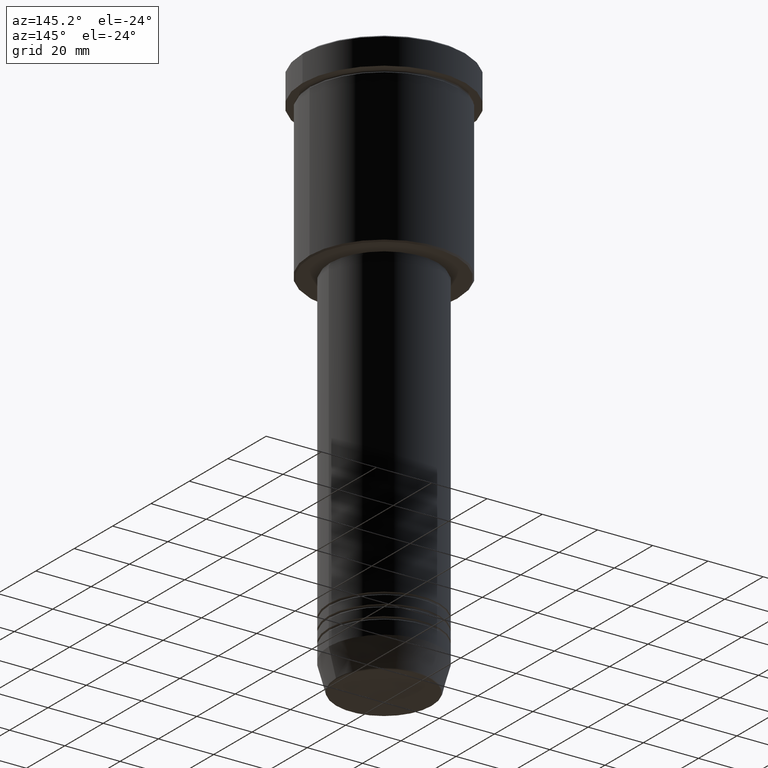
[diagram: clean part render]
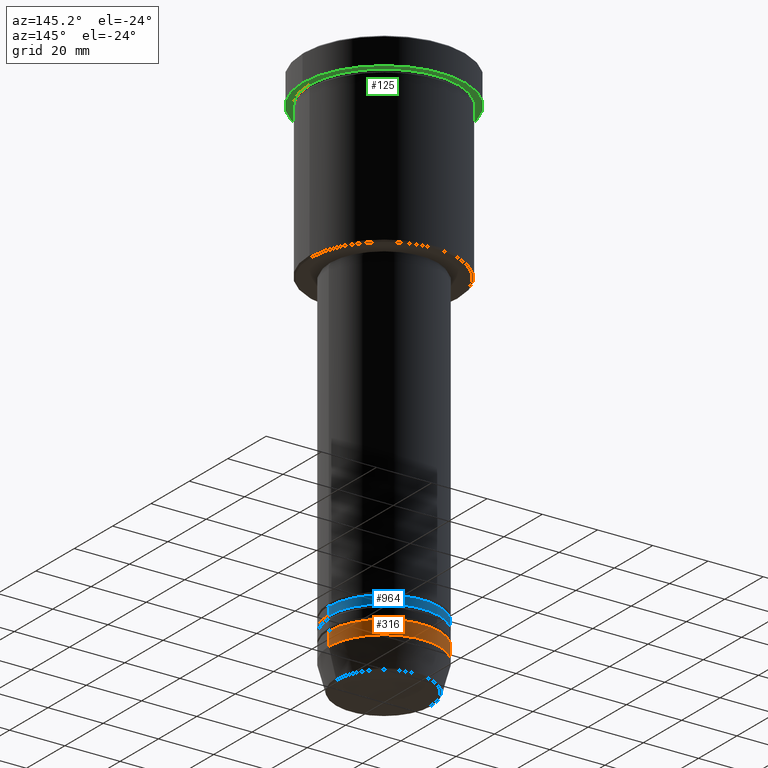
[diagram: same view with three faces highlighted in distinct colors, each labeled with its STEP entity id]
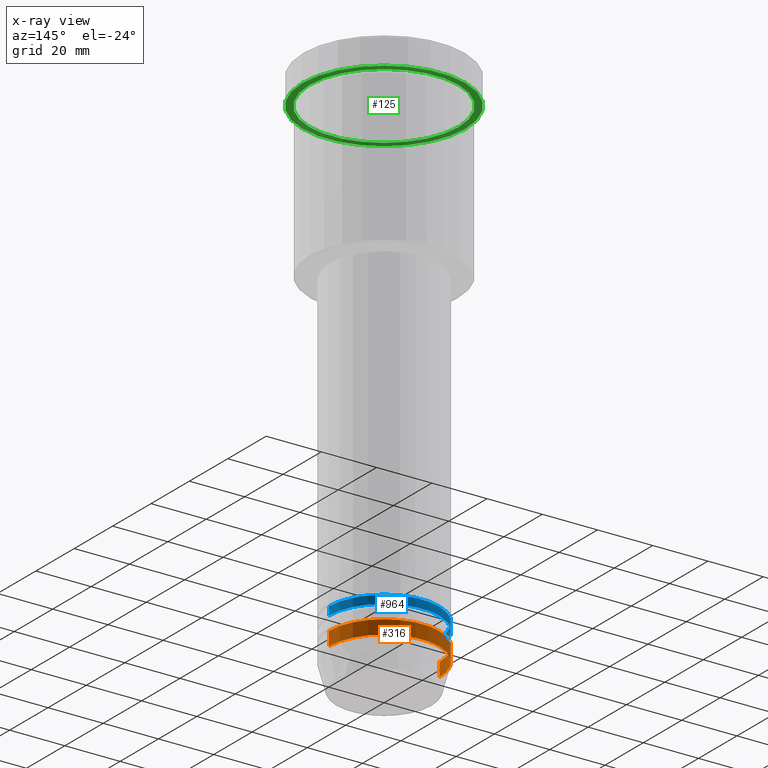
[diagram: x-ray of the same camera — body ghosted, the three highlighted faces saturated]
A machine part, auxiliary view with three faces highlighted in distinct colors.
The next image is the same camera in x-ray (body ghosted, the three faces saturated) — at least one of them is partly hidden behind the body in this view.
Their STEP definitions:

[orange] entity #316 — the highlighted cylindrical surface (partial cylindrical patch) has radius 20 mm, axis along (-0, -0, 1).
#10 = CIRCLE ( 'NONE', #518, 20.00000000000000000 ) ;
#26 = VERTEX_POINT ( 'NONE', #328 ) ;
#55 = EDGE_CURVE ( 'NONE', #1164, #26, #375, .T. ) ;
#67 = EDGE_LOOP ( 'NONE', ( #358, #707, #1082, #122 ) ) ;
#71 = AXIS2_PLACEMENT_3D ( 'NONE', #478, #746, #1113 ) ;
#88 = VECTOR ( 'NONE', #192, 1000.000000000000000 ) ;
#122 = ORIENTED_EDGE ( 'NONE', *, *, #55, .F. ) ;
#136 = EDGE_CURVE ( 'NONE', #1164, #398, #597, .T. ) ;
#163 = DIRECTION ( 'NONE',  ( 1.000000000000000000, 0.000000000000000000, 0.000000000000000000 ) ) ;
#182 = CARTESIAN_POINT ( 'NONE',  ( 20.00000000000000000, 0.000000000000000000, 0.000000000000000000 ) ) ;
#192 = DIRECTION ( 'NONE',  ( -0.000000000000000000, -0.000000000000000000, 1.000000000000000000 ) ) ;
#251 = CARTESIAN_POINT ( 'NONE',  ( -20.00000000000000000, 2.449293598294706513E-15, 0.000000000000000000 ) ) ;
#279 = AXIS2_PLACEMENT_3D ( 'NONE', #689, #345, #163 ) ;
#308 = EDGE_CURVE ( 'NONE', #26, #904, #10, .T. ) ;
#316 = ADVANCED_FACE ( 'NONE', ( #590 ), #706, .T. ) ;
#325 = CARTESIAN_POINT ( 'NONE',  ( -20.00000000000000000, 2.449293598294706513E-15, -191.0000000000000000 ) ) ;
#328 = CARTESIAN_POINT ( 'NONE',  ( 20.00000000000000000, 0.000000000000000000, -186.0000000000000284 ) ) ;
#345 = DIRECTION ( 'NONE',  ( -0.000000000000000000, -0.000000000000000000, 1.000000000000000000 ) ) ;
#358 = ORIENTED_EDGE ( 'NONE', *, *, #136, .T. ) ;
#375 = LINE ( 'NONE', #182, #88 ) ;
#398 = VERTEX_POINT ( 'NONE', #325 ) ;
#399 = CARTESIAN_POINT ( 'NONE',  ( 20.00000000000000000, 0.000000000000000000, -191.0000000000000000 ) ) ;
#478 = CARTESIAN_POINT ( 'NONE',  ( 0.000000000000000000, 0.000000000000000000, -191.0000000000000000 ) ) ;
#518 = AXIS2_PLACEMENT_3D ( 'NONE', #797, #596, #1149 ) ;
#590 = FACE_OUTER_BOUND ( 'NONE', #67, .T. ) ;
#596 = DIRECTION ( 'NONE',  ( -0.000000000000000000, -0.000000000000000000, 1.000000000000000000 ) ) ;
#597 = CIRCLE ( 'NONE', #71, 20.00000000000000000 ) ;
#672 = LINE ( 'NONE', #251, #922 ) ;
#689 = CARTESIAN_POINT ( 'NONE',  ( 0.000000000000000000, 0.000000000000000000, 0.000000000000000000 ) ) ;
#706 = CYLINDRICAL_SURFACE ( 'NONE', #279, 20.00000000000000000 ) ;
#707 = ORIENTED_EDGE ( 'NONE', *, *, #927, .T. ) ;
#746 = DIRECTION ( 'NONE',  ( -0.000000000000000000, -0.000000000000000000, 1.000000000000000000 ) ) ;
#797 = CARTESIAN_POINT ( 'NONE',  ( 0.000000000000000000, 0.000000000000000000, -186.0000000000000284 ) ) ;
#904 = VERTEX_POINT ( 'NONE', #992 ) ;
#922 = VECTOR ( 'NONE', #971, 1000.000000000000000 ) ;
#927 = EDGE_CURVE ( 'NONE', #398, #904, #672, .T. ) ;
#971 = DIRECTION ( 'NONE',  ( -0.000000000000000000, -0.000000000000000000, 1.000000000000000000 ) ) ;
#992 = CARTESIAN_POINT ( 'NONE',  ( -20.00000000000000000, 2.449293598294706513E-15, -186.0000000000000284 ) ) ;
#1082 = ORIENTED_EDGE ( 'NONE', *, *, #308, .F. ) ;
#1113 = DIRECTION ( 'NONE',  ( 1.000000000000000000, 0.000000000000000000, 0.000000000000000000 ) ) ;
#1149 = DIRECTION ( 'NONE',  ( 1.000000000000000000, 0.000000000000000000, 0.000000000000000000 ) ) ;
#1164 = VERTEX_POINT ( 'NONE', #399 ) ;

[blue] entity #964 — the highlighted cylindrical surface (partial cylindrical patch) has radius 20 mm, axis along (-0, -0, 1).
#37 = CARTESIAN_POINT ( 'NONE',  ( 0.000000000000000000, 0.000000000000000000, -177.9999999999999147 ) ) ;
#52 = CARTESIAN_POINT ( 'NONE',  ( 0.000000000000000000, 0.000000000000000000, -180.9999999999999432 ) ) ;
#72 = AXIS2_PLACEMENT_3D ( 'NONE', #37, #305, #743 ) ;
#89 = VERTEX_POINT ( 'NONE', #1179 ) ;
#137 = ORIENTED_EDGE ( 'NONE', *, *, #211, .F. ) ;
#160 = VERTEX_POINT ( 'NONE', #394 ) ;
#211 = EDGE_CURVE ( 'NONE', #608, #89, #945, .T. ) ;
#243 = VECTOR ( 'NONE', #841, 1000.000000000000000 ) ;
#272 = EDGE_LOOP ( 'NONE', ( #671, #1141, #923, #137 ) ) ;
#305 = DIRECTION ( 'NONE',  ( -0.000000000000000000, -0.000000000000000000, 1.000000000000000000 ) ) ;
#353 = VECTOR ( 'NONE', #801, 1000.000000000000000 ) ;
#392 = CIRCLE ( 'NONE', #752, 20.00000000000000355 ) ;
#394 = CARTESIAN_POINT ( 'NONE',  ( -20.00000000000000355, 2.449293598294706907E-15, -180.9999999999999432 ) ) ;
#430 = CIRCLE ( 'NONE', #72, 20.00000000000000000 ) ;
#441 = AXIS2_PLACEMENT_3D ( 'NONE', #831, #914, #902 ) ;
#455 = CARTESIAN_POINT ( 'NONE',  ( -20.00000000000000000, 2.449293598294706513E-15, -177.9999999999999147 ) ) ;
#494 = DIRECTION ( 'NONE',  ( -0.000000000000000000, -0.000000000000000000, 1.000000000000000000 ) ) ;
#515 = VERTEX_POINT ( 'NONE', #455 ) ;
#535 = CYLINDRICAL_SURFACE ( 'NONE', #441, 20.00000000000000355 ) ;
#550 = EDGE_CURVE ( 'NONE', #160, #515, #552, .T. ) ;
#552 = LINE ( 'NONE', #919, #353 ) ;
#563 = CARTESIAN_POINT ( 'NONE',  ( 20.00000000000000355, 0.000000000000000000, -180.9999999999999432 ) ) ;
#608 = VERTEX_POINT ( 'NONE', #563 ) ;
#642 = EDGE_CURVE ( 'NONE', #89, #515, #430, .T. ) ;
#669 = CARTESIAN_POINT ( 'NONE',  ( 20.00000000000000355, 0.000000000000000000, 0.000000000000000000 ) ) ;
#671 = ORIENTED_EDGE ( 'NONE', *, *, #1159, .T. ) ;
#743 = DIRECTION ( 'NONE',  ( 1.000000000000000000, 0.000000000000000000, 0.000000000000000000 ) ) ;
#752 = AXIS2_PLACEMENT_3D ( 'NONE', #52, #494, #786 ) ;
#786 = DIRECTION ( 'NONE',  ( 1.000000000000000000, 0.000000000000000000, 0.000000000000000000 ) ) ;
#801 = DIRECTION ( 'NONE',  ( -0.000000000000000000, -0.000000000000000000, 1.000000000000000000 ) ) ;
#831 = CARTESIAN_POINT ( 'NONE',  ( 0.000000000000000000, 0.000000000000000000, 0.000000000000000000 ) ) ;
#841 = DIRECTION ( 'NONE',  ( -0.000000000000000000, -0.000000000000000000, 1.000000000000000000 ) ) ;
#902 = DIRECTION ( 'NONE',  ( 1.000000000000000000, 0.000000000000000000, 0.000000000000000000 ) ) ;
#914 = DIRECTION ( 'NONE',  ( -0.000000000000000000, -0.000000000000000000, 1.000000000000000000 ) ) ;
#919 = CARTESIAN_POINT ( 'NONE',  ( -20.00000000000000355, 2.449293598294706907E-15, 0.000000000000000000 ) ) ;
#923 = ORIENTED_EDGE ( 'NONE', *, *, #642, .F. ) ;
#945 = LINE ( 'NONE', #669, #243 ) ;
#964 = ADVANCED_FACE ( 'NONE', ( #1007 ), #535, .T. ) ;
#1007 = FACE_OUTER_BOUND ( 'NONE', #272, .T. ) ;
#1141 = ORIENTED_EDGE ( 'NONE', *, *, #550, .T. ) ;
#1159 = EDGE_CURVE ( 'NONE', #608, #160, #392, .T. ) ;
#1179 = CARTESIAN_POINT ( 'NONE',  ( 20.00000000000000000, 0.000000000000000000, -177.9999999999999147 ) ) ;

[green] entity #125 — the highlighted planar face has unit normal (0, 0, -1).
#64 = CARTESIAN_POINT ( 'NONE',  ( 0.000000000000000000, 0.000000000000000000, -9.999999999999992895 ) ) ;
#90 = CARTESIAN_POINT ( 'NONE',  ( 29.50000000000000000, 0.000000000000000000, -9.999999999999992895 ) ) ;
#91 = AXIS2_PLACEMENT_3D ( 'NONE', #378, #1041, #661 ) ;
#97 = CARTESIAN_POINT ( 'NONE',  ( 27.00000000000000355, 3.306546357697854128E-15, -9.999999999999992895 ) ) ;
#125 = ADVANCED_FACE ( 'NONE', ( #162, #973 ), #709, .T. ) ;
#162 = FACE_BOUND ( 'NONE', #412, .T. ) ;
#225 = CIRCLE ( 'NONE', #899, 27.00000000000000355 ) ;
#236 = DIRECTION ( 'NONE',  ( -0.000000000000000000, -0.000000000000000000, 1.000000000000000000 ) ) ;
#300 = CARTESIAN_POINT ( 'NONE',  ( 0.000000000000000000, 0.000000000000000000, -9.999999999999992895 ) ) ;
#303 = EDGE_CURVE ( 'NONE', #420, #893, #903, .T. ) ;
#331 = DIRECTION ( 'NONE',  ( -1.000000000000000000, 0.000000000000000000, 0.000000000000000000 ) ) ;
#339 = CIRCLE ( 'NONE', #91, 29.50000000000000000 ) ;
#378 = CARTESIAN_POINT ( 'NONE',  ( 0.000000000000000000, 0.000000000000000000, -9.999999999999992895 ) ) ;
#389 = CARTESIAN_POINT ( 'NONE',  ( -29.50000000000000000, 3.612708057484691604E-15, -9.999999999999992895 ) ) ;
#412 = EDGE_LOOP ( 'NONE', ( #989, #691 ) ) ;
#420 = VERTEX_POINT ( 'NONE', #1085 ) ;
#423 = DIRECTION ( 'NONE',  ( -1.000000000000000000, 0.000000000000000000, 0.000000000000000000 ) ) ;
#506 = VERTEX_POINT ( 'NONE', #90 ) ;
#513 = DIRECTION ( 'NONE',  ( -0.000000000000000000, -0.000000000000000000, 1.000000000000000000 ) ) ;
#557 = AXIS2_PLACEMENT_3D ( 'NONE', #1065, #236, #331 ) ;
#568 = EDGE_CURVE ( 'NONE', #686, #506, #339, .T. ) ;
#571 = DIRECTION ( 'NONE',  ( -1.000000000000000000, 0.000000000000000000, -0.000000000000000000 ) ) ;
#653 = ORIENTED_EDGE ( 'NONE', *, *, #568, .F. ) ;
#657 = DIRECTION ( 'NONE',  ( 1.000000000000000000, 0.000000000000000000, 0.000000000000000000 ) ) ;
#661 = DIRECTION ( 'NONE',  ( 1.000000000000000000, 0.000000000000000000, 0.000000000000000000 ) ) ;
#686 = VERTEX_POINT ( 'NONE', #389 ) ;
#691 = ORIENTED_EDGE ( 'NONE', *, *, #854, .T. ) ;
#709 = PLANE ( 'NONE',  #1058 ) ;
#742 = CARTESIAN_POINT ( 'NONE',  ( 0.000000000000000000, 29.50000000000000000, -9.999999999999992895 ) ) ;
#757 = DIRECTION ( 'NONE',  ( -0.000000000000000000, -0.000000000000000000, 1.000000000000000000 ) ) ;
#800 = EDGE_CURVE ( 'NONE', #506, #686, #879, .T. ) ;
#830 = ORIENTED_EDGE ( 'NONE', *, *, #800, .F. ) ;
#843 = DIRECTION ( 'NONE',  ( 0.000000000000000000, 0.000000000000000000, -1.000000000000000000 ) ) ;
#854 = EDGE_CURVE ( 'NONE', #893, #420, #225, .T. ) ;
#879 = CIRCLE ( 'NONE', #1111, 29.50000000000000000 ) ;
#893 = VERTEX_POINT ( 'NONE', #97 ) ;
#899 = AXIS2_PLACEMENT_3D ( 'NONE', #64, #513, #423 ) ;
#903 = CIRCLE ( 'NONE', #557, 27.00000000000000355 ) ;
#973 = FACE_OUTER_BOUND ( 'NONE', #990, .T. ) ;
#989 = ORIENTED_EDGE ( 'NONE', *, *, #303, .T. ) ;
#990 = EDGE_LOOP ( 'NONE', ( #830, #653 ) ) ;
#1041 = DIRECTION ( 'NONE',  ( -0.000000000000000000, -0.000000000000000000, 1.000000000000000000 ) ) ;
#1058 = AXIS2_PLACEMENT_3D ( 'NONE', #742, #843, #571 ) ;
#1065 = CARTESIAN_POINT ( 'NONE',  ( 0.000000000000000000, 0.000000000000000000, -9.999999999999992895 ) ) ;
#1085 = CARTESIAN_POINT ( 'NONE',  ( -27.00000000000000355, 0.000000000000000000, -9.999999999999992895 ) ) ;
#1111 = AXIS2_PLACEMENT_3D ( 'NONE', #300, #757, #657 ) ;